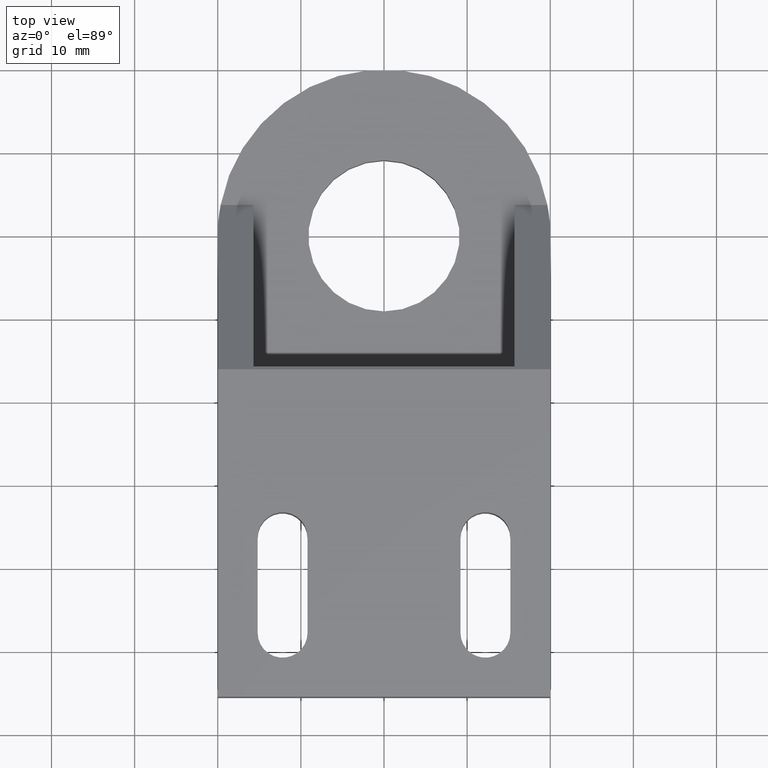
[diagram: clean part render]
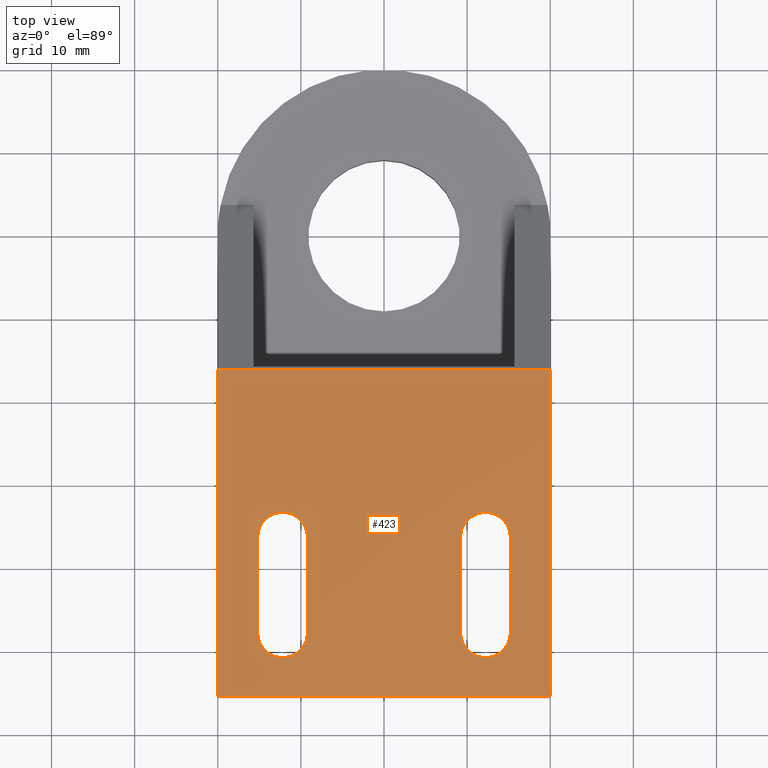
[diagram: same view with one face highlighted and labeled with its STEP entity id]
A machine part, top view. The second image highlights one B-rep face of the part: STEP entity #423.
In plain terms, the highlighted planar face has unit normal (0, 0, 1).
Its self-contained STEP definition (entity closure, byte-faithful):
#15=FACE_BOUND('',#68,.T.);
#16=FACE_BOUND('',#69,.T.);
#25=CIRCLE('',#470,2.99999999998818);
#26=CIRCLE('',#471,2.99999999998818);
#27=CIRCLE('',#472,2.99999999998818);
#28=CIRCLE('',#473,2.99999999998818);
#45=FACE_OUTER_BOUND('',#67,.T.);
#67=EDGE_LOOP('',(#307,#308,#309,#310));
#68=EDGE_LOOP('',(#311,#312,#313,#314));
#69=EDGE_LOOP('',(#315,#316,#317,#318));
#94=LINE('',#626,#140);
#98=LINE('',#635,#144);
#102=LINE('',#651,#148);
#107=LINE('',#659,#153);
#108=LINE('',#664,#154);
#109=LINE('',#667,#155);
#110=LINE('',#672,#156);
#111=LINE('',#675,#157);
#140=VECTOR('',#504,39.9999999998399);
#144=VECTOR('',#510,39.3999999998423);
#148=VECTOR('',#526,39.3999999998423);
#153=VECTOR('',#533,39.9999999998399);
#154=VECTOR('',#536,11.4999999999827);
#155=VECTOR('',#539,11.4999999999827);
#156=VECTOR('',#542,11.4999999999827);
#157=VECTOR('',#545,11.4999999999827);
#183=VERTEX_POINT('',#619);
#186=VERTEX_POINT('',#624);
#190=VERTEX_POINT('',#633);
#196=VERTEX_POINT('',#650);
#199=VERTEX_POINT('',#660);
#200=VERTEX_POINT('',#661);
#201=VERTEX_POINT('',#663);
#202=VERTEX_POINT('',#665);
#203=VERTEX_POINT('',#668);
#204=VERTEX_POINT('',#669);
#205=VERTEX_POINT('',#671);
#206=VERTEX_POINT('',#673);
#226=EDGE_CURVE('',#183,#186,#94,.T.);
#230=EDGE_CURVE('',#186,#190,#98,.T.);
#238=EDGE_CURVE('',#196,#183,#102,.T.);
#243=EDGE_CURVE('',#196,#190,#107,.T.);
#244=EDGE_CURVE('',#199,#200,#25,.T.);
#245=EDGE_CURVE('',#201,#199,#108,.T.);
#246=EDGE_CURVE('',#202,#201,#26,.T.);
#247=EDGE_CURVE('',#200,#202,#109,.T.);
#248=EDGE_CURVE('',#203,#204,#27,.T.);
#249=EDGE_CURVE('',#205,#203,#110,.T.);
#250=EDGE_CURVE('',#206,#205,#28,.T.);
#251=EDGE_CURVE('',#204,#206,#111,.T.);
#307=ORIENTED_EDGE('',*,*,#226,.T.);
#308=ORIENTED_EDGE('',*,*,#230,.T.);
#309=ORIENTED_EDGE('',*,*,#243,.F.);
#310=ORIENTED_EDGE('',*,*,#238,.T.);
#311=ORIENTED_EDGE('',*,*,#244,.F.);
#312=ORIENTED_EDGE('',*,*,#245,.F.);
#313=ORIENTED_EDGE('',*,*,#246,.F.);
#314=ORIENTED_EDGE('',*,*,#247,.F.);
#315=ORIENTED_EDGE('',*,*,#248,.F.);
#316=ORIENTED_EDGE('',*,*,#249,.F.);
#317=ORIENTED_EDGE('',*,*,#250,.F.);
#318=ORIENTED_EDGE('',*,*,#251,.F.);
#406=PLANE('',#469);
#423=ADVANCED_FACE('',(#45,#15,#16),#406,.T.);
#469=AXIS2_PLACEMENT_3D('',#658,#531,#532);
#470=AXIS2_PLACEMENT_3D('',#662,#534,#535);
#471=AXIS2_PLACEMENT_3D('',#666,#537,#538);
#472=AXIS2_PLACEMENT_3D('',#670,#540,#541);
#473=AXIS2_PLACEMENT_3D('',#674,#543,#544);
#504=DIRECTION('',(1.,0.,0.));
#510=DIRECTION('',(0.,1.,0.));
#526=DIRECTION('',(0.,-1.,0.));
#531=DIRECTION('center_axis',(0.,0.,1.));
#532=DIRECTION('ref_axis',(1.,0.,0.));
#533=DIRECTION('',(1.,0.,0.));
#534=DIRECTION('center_axis',(0.,0.,1.));
#535=DIRECTION('ref_axis',(1.,0.,0.));
#536=DIRECTION('',(0.,-1.,0.));
#537=DIRECTION('center_axis',(0.,0.,1.));
#538=DIRECTION('ref_axis',(1.,0.,0.));
#539=DIRECTION('',(0.,1.,0.));
#540=DIRECTION('center_axis',(0.,0.,1.));
#541=DIRECTION('ref_axis',(1.,0.,0.));
#542=DIRECTION('',(0.,-1.,0.));
#543=DIRECTION('center_axis',(0.,0.,1.));
#544=DIRECTION('ref_axis',(1.,0.,0.));
#545=DIRECTION('',(0.,1.,0.));
#619=CARTESIAN_POINT('',(-19.99999999992,-55.6999999997775,20.5999999999172));
#624=CARTESIAN_POINT('',(19.99999999992,-55.6999999997775,20.5999999999172));
#626=CARTESIAN_POINT('',(-19.99999999992,-55.6999999997775,20.5999999999172));
#633=CARTESIAN_POINT('',(19.99999999992,-16.2999999999351,20.5999999999172));
#635=CARTESIAN_POINT('',(19.99999999992,-55.6999999997775,20.5999999999172));
#650=CARTESIAN_POINT('',(-19.99999999992,-16.2999999999351,20.5999999999172));
#651=CARTESIAN_POINT('',(-19.99999999992,-16.2999999999351,20.5999999999172));
#658=CARTESIAN_POINT('Origin',(-24.0000047436861,-63.2700047436274,20.5999999999172));
#659=CARTESIAN_POINT('',(-19.99999999992,-16.2999999999351,20.5999999999172));
#660=CARTESIAN_POINT('',(9.19999999996343,-47.9999999998081,20.5999999999172));
#661=CARTESIAN_POINT('',(15.1999999999398,-47.9999999998081,20.5999999999172));
#662=CARTESIAN_POINT('Origin',(12.1999999999516,-47.9999999998081,20.5999999999172));
#663=CARTESIAN_POINT('',(9.19999999996343,-36.4999999998254,20.5999999999172));
#664=CARTESIAN_POINT('',(9.19999999996343,-36.4999999998254,20.5999999999172));
#665=CARTESIAN_POINT('',(15.1999999999398,-36.4999999998254,20.5999999999172));
#666=CARTESIAN_POINT('Origin',(12.1999999999516,-36.4999999998254,20.5999999999172));
#667=CARTESIAN_POINT('',(15.1999999999398,-47.9999999998081,20.5999999999172));
#668=CARTESIAN_POINT('',(-15.1999999999389,-47.9999999998081,20.5999999999172));
#669=CARTESIAN_POINT('',(-9.19999999996253,-47.9999999998081,20.5999999999172));
#670=CARTESIAN_POINT('Origin',(-12.1999999999507,-47.9999999998081,20.5999999999172));
#671=CARTESIAN_POINT('',(-15.1999999999389,-36.4999999998254,20.5999999999172));
#672=CARTESIAN_POINT('',(-15.1999999999389,-36.4999999998254,20.5999999999172));
#673=CARTESIAN_POINT('',(-9.19999999996253,-36.4999999998254,20.5999999999172));
#674=CARTESIAN_POINT('Origin',(-12.1999999999507,-36.4999999998254,20.5999999999172));
#675=CARTESIAN_POINT('',(-9.19999999996253,-47.9999999998081,20.5999999999172));